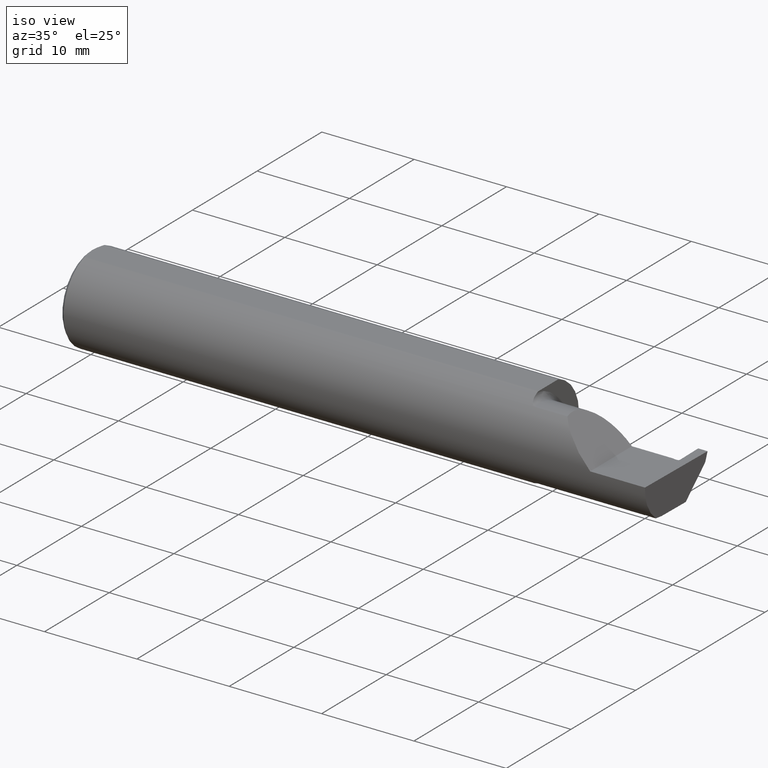
[diagram: clean part render]
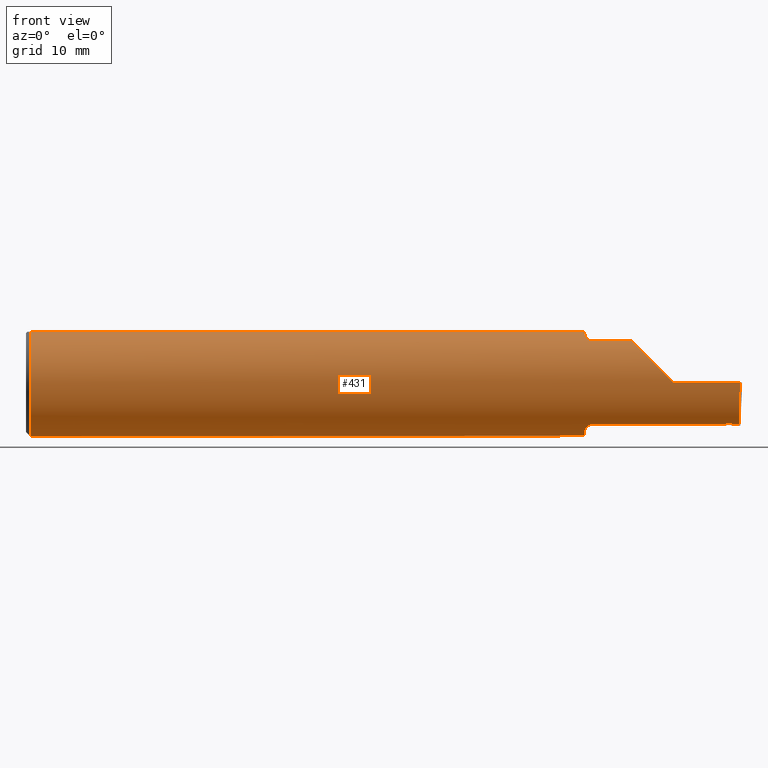
[diagram: tour spotlight — one face highlighted and labeled with its STEP entity id]
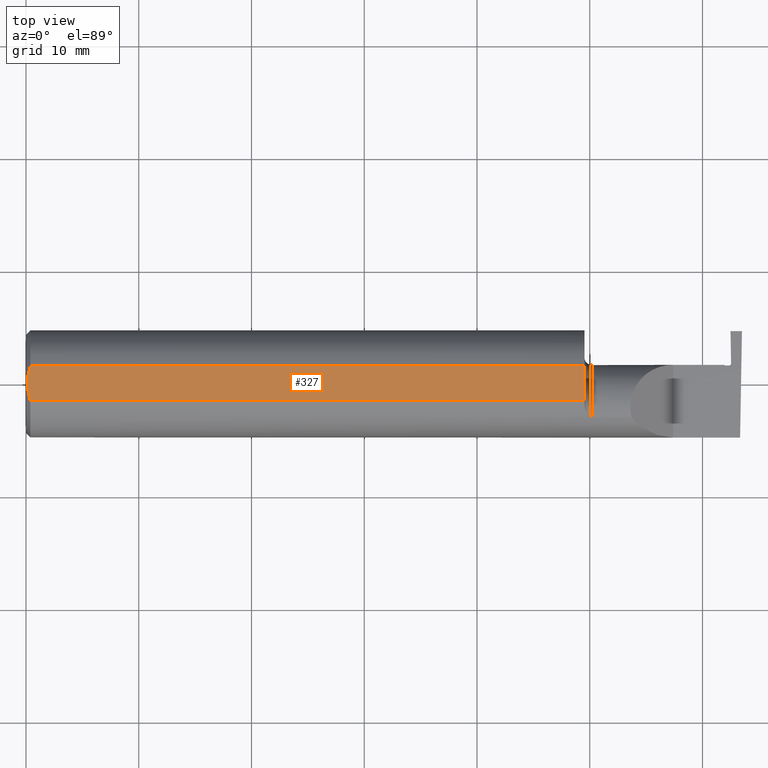
[diagram: tour spotlight — one face highlighted and labeled with its STEP entity id]
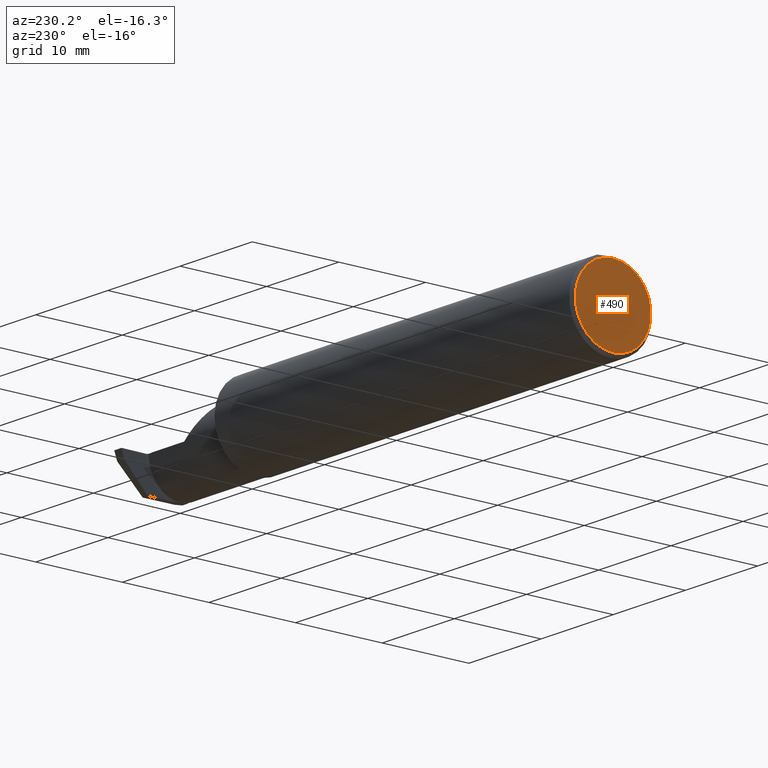
[diagram: tour spotlight — one face highlighted and labeled with its STEP entity id]
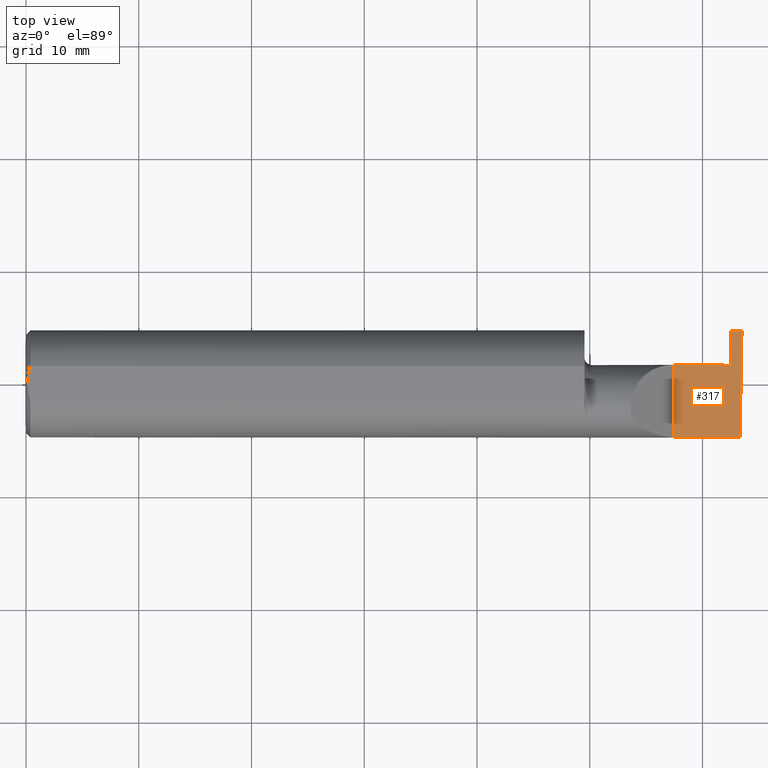
[diagram: tour spotlight — one face highlighted and labeled with its STEP entity id]
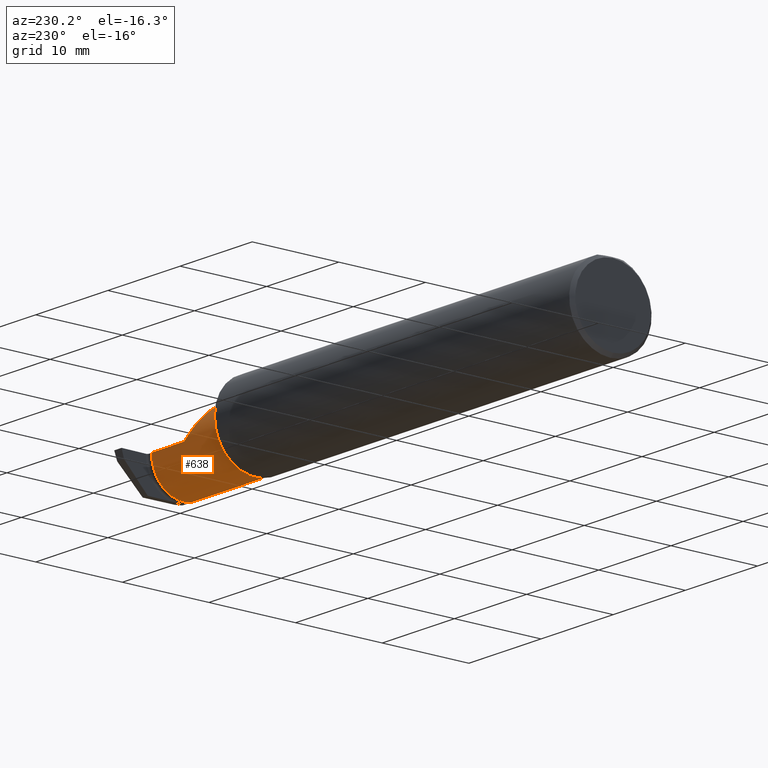
[diagram: tour spotlight — one face highlighted and labeled with its STEP entity id]
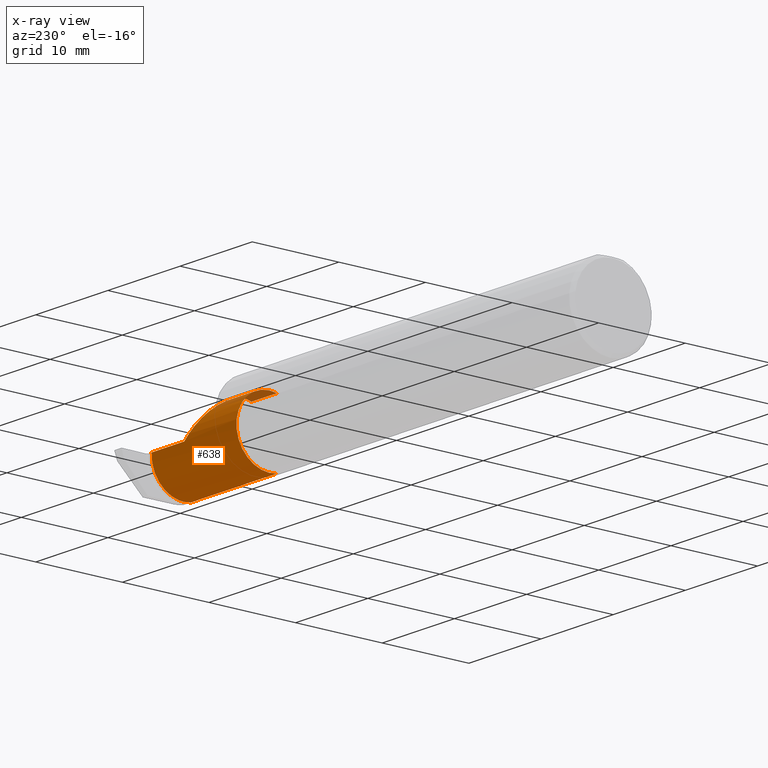
[diagram: x-ray of the same camera — body ghosted, this tour face saturated]
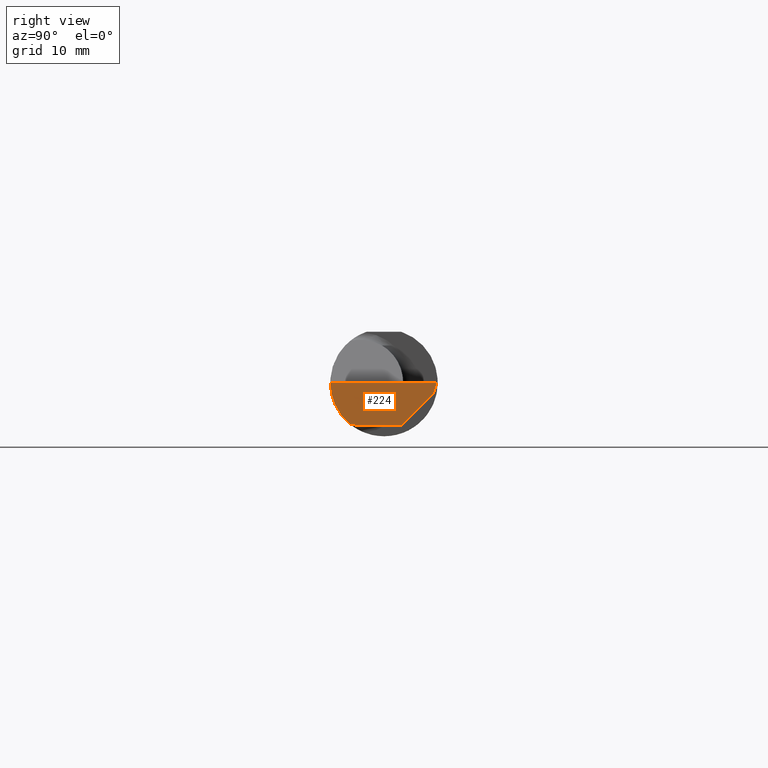
[diagram: tour spotlight — one face highlighted and labeled with its STEP entity id]
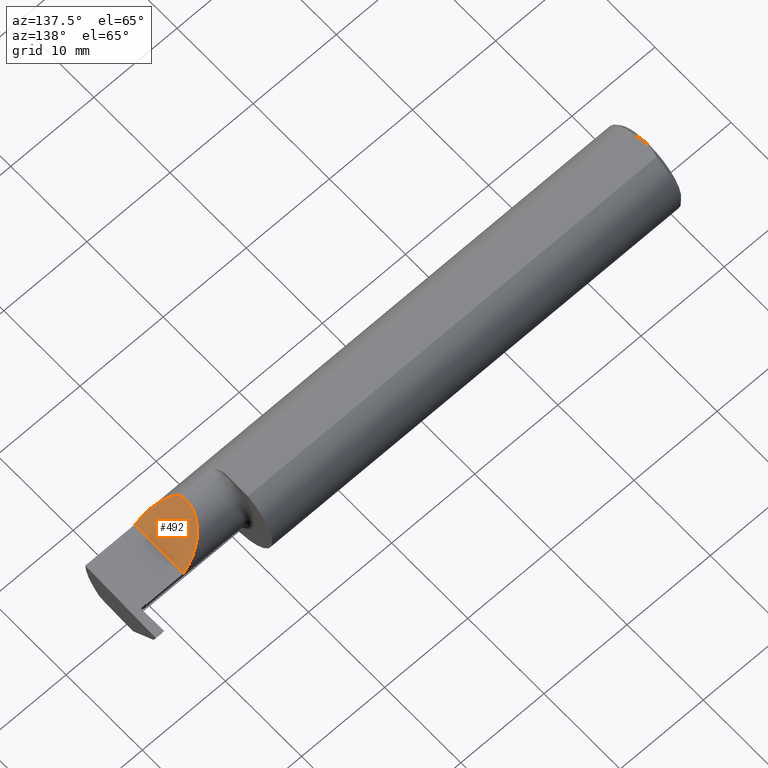
[diagram: tour spotlight — one face highlighted and labeled with its STEP entity id]
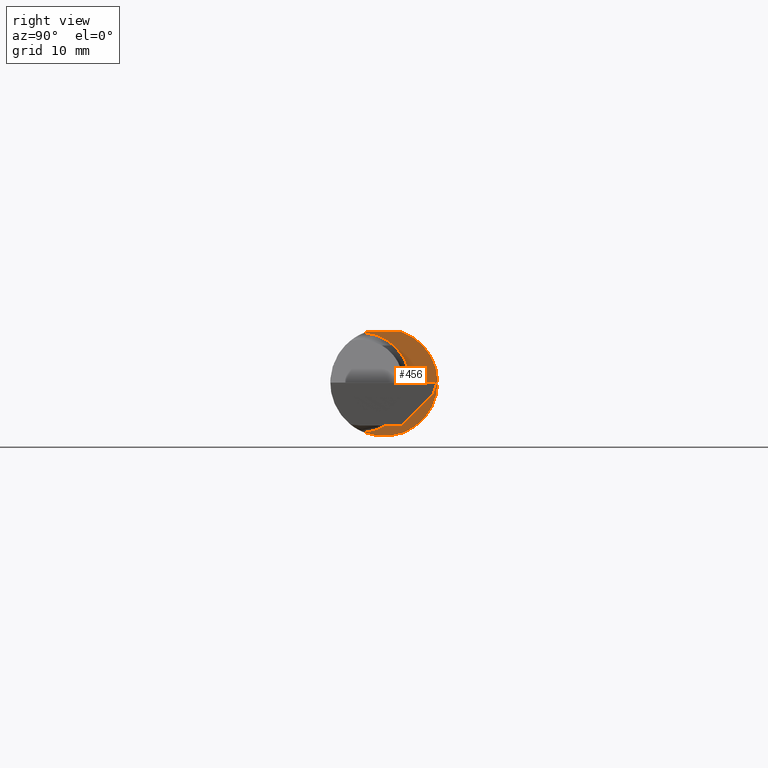
[diagram: tour spotlight — one face highlighted and labeled with its STEP entity id]
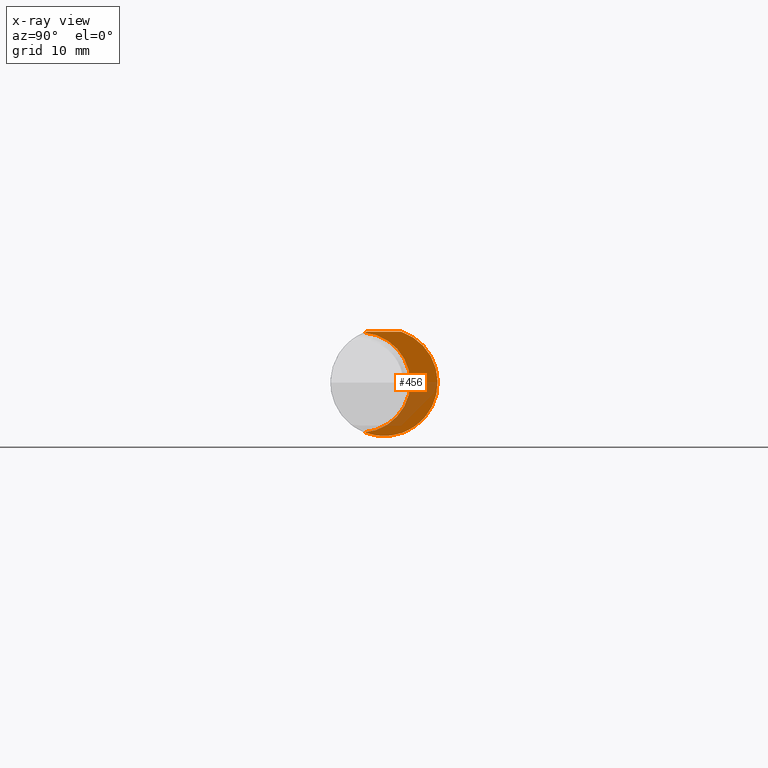
[diagram: x-ray of the same camera — body ghosted, this tour face saturated]
A machine part: a face-by-face anatomy tour. The part has 19 B-rep faces; the first image is the clean iso view, then the 8 largest visible faces are spotlighted one at a time (largest first), each with its STEP entity span.

Face 1 — front view, entity #431. In plain terms, the highlighted cylindrical surface (partial cylindrical patch) has radius 4.7587 mm, axis along (-1, -0, -0).
Definition (entity closure, byte-faithful):
#6 = CARTESIAN_POINT ( 'NONE',  ( 2.445025619349326718, -0.1199521637387227363, -0.1439149085897588609 ) ) ;
#7 = CARTESIAN_POINT ( 'NONE',  ( 1.949999999999999956, -0.06851976604679065053, 0.1743704796142198643 ) ) ;
#18 = ORIENTED_EDGE ( 'NONE', *, *, #558, .F. ) ;
#22 = CARTESIAN_POINT ( 'NONE',  ( 1.951843912362377642, -0.08846956905169088559, -0.1652353808078971809 ) ) ;
#23 = EDGE_CURVE ( 'NONE', #665, #352, #226, .T. ) ;
#31 = ORIENTED_EDGE ( 'NONE', *, *, #713, .F. ) ;
#39 = CARTESIAN_POINT ( 'NONE',  ( 1.974999999999999867, -0.1172600179964006784, -0.1461167706989303094 ) ) ;
#57 = VERTEX_POINT ( 'NONE', #539 ) ;
#62 = VERTEX_POINT ( 'NONE', #400 ) ;
#65 = VECTOR ( 'NONE', #911, 39.37007874015748143 ) ;
#70 = VERTEX_POINT ( 'NONE', #689 ) ;
#75 = ORIENTED_EDGE ( 'NONE', *, *, #252, .T. ) ;
#88 = VERTEX_POINT ( 'NONE', #311 ) ;
#93 = CARTESIAN_POINT ( 'NONE',  ( 2.456234333134005077, -0.1206275801653517166, -0.1433492567244478710 ) ) ;
#98 = CARTESIAN_POINT ( 'NONE',  ( 2.458725193120729458, -0.1207769875284124134, -0.1432234314053005275 ) ) ;
#100 = ORIENTED_EDGE ( 'NONE', *, *, #830, .F. ) ;
#110 = CARTESIAN_POINT ( 'NONE',  ( 2.452498061677696573, -0.1204031018440645667, -0.1435379292247977723 ) ) ;
#111 = VECTOR ( 'NONE', #791, 39.37007874015748143 ) ;
#113 = VERTEX_POINT ( 'NONE', #314 ) ;
#121 = CARTESIAN_POINT ( 'NONE',  ( 2.260000000000000231, -0.1873499999999999888, 2.939152317953647352E-17 ) ) ;
#122 = VERTEX_POINT ( 'NONE', #598 ) ;
#132 = CYLINDRICAL_SURFACE ( 'NONE', #602, 0.1873499999999999888 ) ;
#134 = VERTEX_POINT ( 'NONE', #121 ) ;
#140 = CARTESIAN_POINT ( 'NONE',  ( 2.443647039190231407, -0.1172600179964006506, -0.1461167706989302539 ) ) ;
#148 = CARTESIAN_POINT ( 'NONE',  ( 2.462366680899613414, -0.1203677650156389084, -0.1435703392140302570 ) ) ;
#156 = EDGE_CURVE ( 'NONE', #122, #62, #568, .T. ) ;
#160 = DIRECTION ( 'NONE',  ( 1.000000000000000000, 3.380999992158740588E-17, 0.000000000000000000 ) ) ;
#165 = CARTESIAN_POINT ( 'NONE',  ( 1.949999999999999956, -0.06851976604679065053, -0.1743704796142198643 ) ) ;
#175 = CARTESIAN_POINT ( 'NONE',  ( 1.974999999999999867, -0.1172600179964007477, 0.1461167706989303094 ) ) ;
#179 = CARTESIAN_POINT ( 'NONE',  ( 1.956287624083520083, -0.1021858045380144991, 0.1571187174372875306 ) ) ;
#184 = ORIENTED_EDGE ( 'NONE', *, *, #686, .F. ) ;
#187 = CARTESIAN_POINT ( 'NONE',  ( 2.491992669264299742, -0.1873499999999999888, -0.05781030015605114619 ) ) ;
#202 = CIRCLE ( 'NONE', #406, 0.1873499999999999888 ) ;
#206 = ORIENTED_EDGE ( 'NONE', *, *, #413, .F. ) ;
#226 = B_SPLINE_CURVE_WITH_KNOTS ( 'NONE', 3,
 ( #459, #454, #535, #674, #894, #179, #250, #245, #899, #753, #903, #175 ),
 .UNSPECIFIED., .F., .F.,
 ( 4, 2, 2, 2, 2, 4 ),
 ( 4.423516731080786679E-05, 0.0004615475116586700540, 0.0008788598560065322141, 0.001296172200354394266, 0.001504828372528325617, 0.001713484544702257185 ),
 .UNSPECIFIED. ) ;
#237 = ORIENTED_EDGE ( 'NONE', *, *, #23, .F. ) ;
#245 = CARTESIAN_POINT ( 'NONE',  ( 1.963163223656403389, -0.1119926267047277463, 0.1502091925606062472 ) ) ;
#246 = VECTOR ( 'NONE', #551, 39.37007874015748143 ) ;
#248 = CARTESIAN_POINT ( 'NONE',  ( 1.969511795768555062, -0.1163687266324235220, -0.1468371510166789073 ) ) ;
#250 = CARTESIAN_POINT ( 'NONE',  ( 1.958475602106621638, -0.1064978748893405658, 0.1542035505680383611 ) ) ;
#252 = EDGE_CURVE ( 'NONE', #134, #844, #643, .T. ) ;
#253 = DIRECTION ( 'NONE',  ( 1.000000000000000000, 0.000000000000000000, 0.000000000000000000 ) ) ;
#269 = LINE ( 'NONE', #915, #246 ) ;
#272 = DIRECTION ( 'NONE',  ( 1.000000000000000000, 3.380999992158740588E-17, 0.000000000000000000 ) ) ;
#277 = AXIS2_PLACEMENT_3D ( 'NONE', #614, #345, #630 ) ;
#288 = ORIENTED_EDGE ( 'NONE', *, *, #389, .F. ) ;
#289 = B_SPLINE_CURVE_WITH_KNOTS ( 'NONE', 3,
 ( #39, #755, #248, #523, #882, #375, #675, #824, #22, #520, #532, #165 ),
 .UNSPECIFIED., .F., .F.,
 ( 4, 2, 2, 2, 2, 4 ),
 ( 1.967976973658592312E-07, 0.0002120314145722180567, 0.0004238660314470702188, 0.0008475352651967873368, 0.001271204498946504292, 0.001694873732696221139 ),
 .UNSPECIFIED. ) ;
#291 = LINE ( 'NONE', #517, #111 ) ;
#292 = EDGE_CURVE ( 'NONE', #748, #929, #202, .T. ) ;
#304 = ORIENTED_EDGE ( 'NONE', *, *, #553, .F. ) ;
#311 = CARTESIAN_POINT ( 'NONE',  ( 2.445025619349326718, -0.1199521637387227363, -0.1439149085897588609 ) ) ;
#312 = CARTESIAN_POINT ( 'NONE',  ( 2.445025619349326718, -0.1199521637387227363, -0.1439149085897588609 ) ) ;
#314 = CARTESIAN_POINT ( 'NONE',  ( 0.01499999999999756042, 0.06039039658754215278, 0.1773499999999999799 ) ) ;
#315 = CARTESIAN_POINT ( 'NONE',  ( 2.459970630616780785, -0.1208515442419362679, -0.1431604929941892868 ) ) ;
#321 = CARTESIAN_POINT ( 'NONE',  ( 0.01499999999999999944, 0.000000000000000000, 0.000000000000000000 ) ) ;
#324 = CARTESIAN_POINT ( 'NONE',  ( 1.949999999999999956, 0.06039039658754216666, 0.1773499999999999799 ) ) ;
#340 = CARTESIAN_POINT ( 'NONE',  ( 2.113883229301070532, -0.1172600179964008726, 0.1461167706989301707 ) ) ;
#341 = CARTESIAN_POINT ( 'NONE',  ( 2.491063981715931686, -0.1623470442677541759, -0.1099340280425337851 ) ) ;
#345 = DIRECTION ( 'NONE',  ( -1.000000000000000000, -0.000000000000000000, -0.000000000000000000 ) ) ;
#352 = VERTEX_POINT ( 'NONE', #908 ) ;
#353 = EDGE_CURVE ( 'NONE', #122, #812, #904, .T. ) ;
#363 = CARTESIAN_POINT ( 'NONE',  ( 2.459970630616780785, -0.1208515442419362679, -0.1431604929941892868 ) ) ;
#366 = CIRCLE ( 'NONE', #408, 0.1873499999999999888 ) ;
#375 = CARTESIAN_POINT ( 'NONE',  ( 1.958439486659306450, -0.1064616213911158821, -0.1542305641651499359 ) ) ;
#377 = ORIENTED_EDGE ( 'NONE', *, *, #887, .F. ) ;
#379 = CARTESIAN_POINT ( 'NONE',  ( 2.450629942783411508, -0.1202905323672773669, -0.1436322050335404887 ) ) ;
#389 = EDGE_CURVE ( 'NONE', #352, #844, #688, .T. ) ;
#400 = CARTESIAN_POINT ( 'NONE',  ( 2.465157082535036182, -0.1172600179964006784, -0.1461167706989302539 ) ) ;
#402 = CARTESIAN_POINT ( 'NONE',  ( 1.949999999999999956, 0.000000000000000000, 0.000000000000000000 ) ) ;
#403 = CARTESIAN_POINT ( 'NONE',  ( 0.000000000000000000, 0.000000000000000000, 0.000000000000000000 ) ) ;
#404 = CARTESIAN_POINT ( 'NONE',  ( 2.214999999999999858, -0.1172600179964007477, -0.1461167706989302817 ) ) ;
#405 = ORIENTED_EDGE ( 'NONE', *, *, #353, .T. ) ;
#406 = AXIS2_PLACEMENT_3D ( 'NONE', #321, #607, #826 ) ;
#407 = DIRECTION ( 'NONE',  ( 0.000000000000000000, 1.000000000000000000, 0.000000000000000000 ) ) ;
#408 = AXIS2_PLACEMENT_3D ( 'NONE', #402, #272, #407 ) ;
#413 = EDGE_CURVE ( 'NONE', #775, #113, #269, .T. ) ;
#414 = DIRECTION ( 'NONE',  ( 0.000000000000000000, 0.000000000000000000, 1.000000000000000000 ) ) ;
#415 = DIRECTION ( 'NONE',  ( -1.000000000000000000, -3.380999992158740588E-17, -0.000000000000000000 ) ) ;
#431 = ADVANCED_FACE ( 'NONE', ( #777 ), #132, .T. ) ;
#439 = ORIENTED_EDGE ( 'NONE', *, *, #893, .F. ) ;
#440 = DIRECTION ( 'NONE',  ( 0.000000000000000000, 1.000000000000000000, 0.000000000000000000 ) ) ;
#441 = LINE ( 'NONE', #795, #743 ) ;
#445 = CARTESIAN_POINT ( 'NONE',  ( 2.457479760627249821, -0.1207023328152106445, -0.1432863527968693540 ) ) ;
#447 = VERTEX_POINT ( 'NONE', #468 ) ;
#454 = CARTESIAN_POINT ( 'NONE',  ( 1.949999999999999512, -0.07367581953296702124, 0.1723443821957854061 ) ) ;
#459 = CARTESIAN_POINT ( 'NONE',  ( 1.949999999999999956, -0.06851976604679065053, 0.1743704796142198643 ) ) ;
#468 = CARTESIAN_POINT ( 'NONE',  ( 1.949999999999999956, -0.06851976604679065053, -0.1743704796142198643 ) ) ;
#477 = EDGE_CURVE ( 'NONE', #113, #748, #831, .T. ) ;
#478 = VERTEX_POINT ( 'NONE', #546 ) ;
#479 = CARTESIAN_POINT ( 'NONE',  ( 0.01499999999999999944, 0.000000000000000000, -0.1873499999999999888 ) ) ;
#488 = CARTESIAN_POINT ( 'NONE',  ( 2.214999999999999858, -0.1172600179964007477, 0.1461167706989302817 ) ) ;
#507 = CARTESIAN_POINT ( 'NONE',  ( 0.01499999999999999944, -0.06039039658753697637, 0.1773499999999999799 ) ) ;
#517 = CARTESIAN_POINT ( 'NONE',  ( 2.214999999999999858, -0.1172600179964007477, -0.1461167706989302817 ) ) ;
#520 = CARTESIAN_POINT ( 'NONE',  ( 1.950358271039144276, -0.07873626113568087115, -0.1700887912276896896 ) ) ;
#523 = CARTESIAN_POINT ( 'NONE',  ( 1.965028532764138580, -0.1137241120808236416, -0.1488947809299403791 ) ) ;
#532 = CARTESIAN_POINT ( 'NONE',  ( 1.950000000000000178, -0.07368234487347195827, -0.1723418180300748392 ) ) ;
#533 = B_SPLINE_CURVE_WITH_KNOTS ( 'NONE', 3,
 ( #785, #715, #801, #148, #806, #363 ),
 .UNSPECIFIED., .F., .F.,
 ( 4, 2, 4 ),
 ( 0.0002880341540428491692, 0.0003798726319057547842, 0.0004717111097686603992 ),
 .UNSPECIFIED. ) ;
#535 = CARTESIAN_POINT ( 'NONE',  ( 1.950353553376444671, -0.07868116735658675642, 0.1701139256562800572 ) ) ;
#539 = CARTESIAN_POINT ( 'NONE',  ( 1.949999999999999956, -0.06039039658753699025, 0.1773499999999999799 ) ) ;
#546 = CARTESIAN_POINT ( 'NONE',  ( 1.974999999999999867, -0.1172600179964006784, -0.1461167706989303094 ) ) ;
#551 = DIRECTION ( 'NONE',  ( -1.000000000000000000, -0.000000000000000000, -0.000000000000000000 ) ) ;
#553 = EDGE_CURVE ( 'NONE', #70, #478, #291, .T. ) ;
#558 = EDGE_CURVE ( 'NONE', #62, #727, #533, .T. ) ;
#566 = EDGE_CURVE ( 'NONE', #812, #134, #441, .T. ) ;
#567 = DIRECTION ( 'NONE',  ( -1.000000000000000000, -0.000000000000000000, -0.000000000000000000 ) ) ;
#568 = LINE ( 'NONE', #404, #788 ) ;
#569 = ORIENTED_EDGE ( 'NONE', *, *, #156, .F. ) ;
#586 = CARTESIAN_POINT ( 'NONE',  ( 2.448761823782201308, -0.1201779628840470154, -0.1437264808476793054 ) ) ;
#591 = ORIENTED_EDGE ( 'NONE', *, *, #477, .F. ) ;
#598 = CARTESIAN_POINT ( 'NONE',  ( 2.490903355898018923, -0.1172600179964007477, -0.1461167706989302817 ) ) ;
#601 = CARTESIAN_POINT ( 'NONE',  ( 2.202189699843949189, -0.1873500000000000443, 0.05781030015605096578 ) ) ;
#602 = AXIS2_PLACEMENT_3D ( 'NONE', #403, #567, #414 ) ;
#607 = DIRECTION ( 'NONE',  ( -1.000000000000000000, -0.000000000000000000, -0.000000000000000000 ) ) ;
#614 = CARTESIAN_POINT ( 'NONE',  ( 0.01499999999999999944, 0.000000000000000000, 0.000000000000000000 ) ) ;
#628 = EDGE_LOOP ( 'NONE', ( #569, #405, #768, #75, #288, #237, #100, #31, #779, #591, #206, #439, #184, #304, #377, #798, #18 ) ) ;
#630 = DIRECTION ( 'NONE',  ( 0.000000000000000000, 0.000000000000000000, 1.000000000000000000 ) ) ;
#643 =( BOUNDED_CURVE ( )  B_SPLINE_CURVE ( 3, ( #821, #601, #886, #898 ),
 .UNSPECIFIED., .F., .T. ) 
 B_SPLINE_CURVE_WITH_KNOTS ( ( 4, 4 ),
 ( 4.712388980384688786, 5.606916381293135743 ),
 .UNSPECIFIED. ) 
 CURVE ( )  GEOMETRIC_REPRESENTATION_ITEM ( )  RATIONAL_B_SPLINE_CURVE ( ( 1.000000000000000000, 0.9344226172588803170, 0.9344226172588803170, 1.000000000000000000 ) ) 
 REPRESENTATION_ITEM ( '' )  );
#654 = CARTESIAN_POINT ( 'NONE',  ( 2.444107737563654847, -0.1181638109592731689, -0.1453914687463582767 ) ) ;
#662 = CARTESIAN_POINT ( 'NONE',  ( 2.454366191791701013, -0.1205154511844148957, -0.1434436126209895079 ) ) ;
#663 = CIRCLE ( 'NONE', #878, 0.1873499999999999888 ) ;
#665 = VERTEX_POINT ( 'NONE', #7 ) ;
#672 = CARTESIAN_POINT ( 'NONE',  ( 2.446893715973978090, -0.1200651732627397716, -0.1438207158680889775 ) ) ;
#674 = CARTESIAN_POINT ( 'NONE',  ( 1.951829077486399555, -0.08839624499054642148, 0.1652742498708037466 ) ) ;
#675 = CARTESIAN_POINT ( 'NONE',  ( 1.956304331342287428, -0.1022198306720691341, -0.1570962426853818039 ) ) ;
#686 = EDGE_CURVE ( 'NONE', #478, #447, #289, .T. ) ;
#688 = LINE ( 'NONE', #488, #65 ) ;
#689 = CARTESIAN_POINT ( 'NONE',  ( 2.443647039190231407, -0.1172600179964006506, -0.1461167706989302539 ) ) ;
#703 = B_SPLINE_CURVE_WITH_KNOTS ( 'NONE', 3,
 ( #6, #804, #654, #140 ),
 .UNSPECIFIED., .F., .F.,
 ( 4, 4 ),
 ( 0.000000000000000000, 9.502270576818755735E-05 ),
 .UNSPECIFIED. ) ;
#713 = EDGE_CURVE ( 'NONE', #929, #57, #742, .T. ) ;
#715 = CARTESIAN_POINT ( 'NONE',  ( 2.464654264849349463, -0.1181371930991237940, -0.1454128298176796952 ) ) ;
#724 = EDGE_CURVE ( 'NONE', #727, #88, #749, .T. ) ;
#727 = VERTEX_POINT ( 'NONE', #315 ) ;
#742 = LINE ( 'NONE', #746, #877 ) ;
#743 = VECTOR ( 'NONE', #927, 39.37007874015748143 ) ;
#746 = CARTESIAN_POINT ( 'NONE',  ( 0.000000000000000000, -0.06039039658753697637, 0.1773499999999999799 ) ) ;
#748 = VERTEX_POINT ( 'NONE', #479 ) ;
#749 = B_SPLINE_CURVE_WITH_KNOTS ( 'NONE', 3,
 ( #897, #98, #445, #93, #662, #110, #379, #586, #672, #312 ),
 .UNSPECIFIED., .F., .F.,
 ( 4, 3, 3, 4 ),
 ( 0.000000000000000000, 9.519312269085498826E-05, 0.0002379828151243721063, 0.0003807725157310080629 ),
 .UNSPECIFIED. ) ;
#753 = CARTESIAN_POINT ( 'NONE',  ( 1.969481469043492750, -0.1163560528186165927, 0.1468472430636323378 ) ) ;
#755 = CARTESIAN_POINT ( 'NONE',  ( 1.972174967710399240, -0.1172600179964006922, -0.1461167706989303650 ) ) ;
#768 = ORIENTED_EDGE ( 'NONE', *, *, #566, .T. ) ;
#770 = CARTESIAN_POINT ( 'NONE',  ( 2.493506715846705468, -0.1873499999999999888, 0.000000000000000000 ) ) ;
#775 = VERTEX_POINT ( 'NONE', #324 ) ;
#776 = CARTESIAN_POINT ( 'NONE',  ( 1.949999999999999956, 0.000000000000000000, 0.000000000000000000 ) ) ;
#777 = FACE_OUTER_BOUND ( 'NONE', #628, .T. ) ;
#779 = ORIENTED_EDGE ( 'NONE', *, *, #292, .F. ) ;
#785 = CARTESIAN_POINT ( 'NONE',  ( 2.465157082535036182, -0.1172600179964006784, -0.1461167706989302539 ) ) ;
#788 = VECTOR ( 'NONE', #415, 39.37007874015748143 ) ;
#791 = DIRECTION ( 'NONE',  ( -1.000000000000000000, -3.380999992158740588E-17, -0.000000000000000000 ) ) ;
#795 = CARTESIAN_POINT ( 'NONE',  ( 3.749399456654646757E-32, -0.1873499999999999888, 3.061616997868384127E-16 ) ) ;
#798 = ORIENTED_EDGE ( 'NONE', *, *, #724, .F. ) ;
#801 = CARTESIAN_POINT ( 'NONE',  ( 2.464039528730182838, -0.1189754524817046855, -0.1447262341929252127 ) ) ;
#804 = CARTESIAN_POINT ( 'NONE',  ( 2.444567321465593857, -0.1190612593471432612, -0.1446574717508759267 ) ) ;
#806 = CARTESIAN_POINT ( 'NONE',  ( 2.461215914213715994, -0.1209260915574468104, -0.1430975625165825382 ) ) ;
#812 = VERTEX_POINT ( 'NONE', #770 ) ;
#821 = CARTESIAN_POINT ( 'NONE',  ( 2.260000000000000231, -0.1873499999999999888, 2.939152317953647352E-17 ) ) ;
#824 = CARTESIAN_POINT ( 'NONE',  ( 1.952960551809340473, -0.09317341542745743999, -0.1626248379125196653 ) ) ;
#826 = DIRECTION ( 'NONE',  ( 0.000000000000000000, 0.000000000000000000, 1.000000000000000000 ) ) ;
#830 = EDGE_CURVE ( 'NONE', #57, #665, #366, .T. ) ;
#831 = CIRCLE ( 'NONE', #277, 0.1873499999999999888 ) ;
#844 = VERTEX_POINT ( 'NONE', #340 ) ;
#852 = CARTESIAN_POINT ( 'NONE',  ( 2.490903355898018923, -0.1172600179964007477, -0.1461167706989302817 ) ) ;
#877 = VECTOR ( 'NONE', #253, 39.37007874015748143 ) ;
#878 = AXIS2_PLACEMENT_3D ( 'NONE', #776, #160, #440 ) ;
#882 = CARTESIAN_POINT ( 'NONE',  ( 1.963203859946833996, -0.1120371980050639121, -0.1501764597936558754 ) ) ;
#886 = CARTESIAN_POINT ( 'NONE',  ( 2.150065971957467070, -0.1623470442677542591, 0.1099340280425335908 ) ) ;
#887 = EDGE_CURVE ( 'NONE', #88, #70, #703, .T. ) ;
#893 = EDGE_CURVE ( 'NONE', #447, #775, #663, .T. ) ;
#894 = CARTESIAN_POINT ( 'NONE',  ( 1.952945243422982369, -0.09312071749437422774, 0.1626553472577906556 ) ) ;
#897 = CARTESIAN_POINT ( 'NONE',  ( 2.459970630616780785, -0.1208515442419362679, -0.1431604929941892868 ) ) ;
#898 = CARTESIAN_POINT ( 'NONE',  ( 2.113883229301070532, -0.1172600179964008726, 0.1461167706989301707 ) ) ;
#899 = CARTESIAN_POINT ( 'NONE',  ( 1.965004157323697376, -0.1137044537483316020, 0.1489098419202428414 ) ) ;
#903 = CARTESIAN_POINT ( 'NONE',  ( 1.972161949849308593, -0.1172600179964061462, 0.1461167706989260351 ) ) ;
#904 =( BOUNDED_CURVE ( )  B_SPLINE_CURVE ( 3, ( #852, #341, #187, #924 ),
 .UNSPECIFIED., .F., .T. ) 
 B_SPLINE_CURVE_WITH_KNOTS ( ( 4, 4 ),
 ( 0.08839520912052888091, 0.9829226100289757406 ),
 .UNSPECIFIED. ) 
 CURVE ( )  GEOMETRIC_REPRESENTATION_ITEM ( )  RATIONAL_B_SPLINE_CURVE ( ( 1.000000000000000000, 0.9344226172588803170, 0.9344226172588803170, 1.000000000000000000 ) ) 
 REPRESENTATION_ITEM ( '' )  );
#908 = CARTESIAN_POINT ( 'NONE',  ( 1.974999999999999867, -0.1172600179964007477, 0.1461167706989303094 ) ) ;
#911 = DIRECTION ( 'NONE',  ( 1.000000000000000000, 3.380999992158740588E-17, 0.000000000000000000 ) ) ;
#915 = CARTESIAN_POINT ( 'NONE',  ( 0.000000000000000000, 0.06039039658753697637, 0.1773499999999999799 ) ) ;
#924 = CARTESIAN_POINT ( 'NONE',  ( 2.493506715846705468, -0.1873499999999999888, 0.000000000000000000 ) ) ;
#927 = DIRECTION ( 'NONE',  ( -1.000000000000000000, -0.000000000000000000, -0.000000000000000000 ) ) ;
#929 = VERTEX_POINT ( 'NONE', #507 ) ;

Face 2 — top view, entity #327. In plain terms, the highlighted planar face has unit normal (0, -0, 1).
Definition (entity closure, byte-faithful):
#8 = B_SPLINE_CURVE_WITH_KNOTS ( 'NONE', 3,
 ( #829, #115, #702, #687, #344, #328 ),
 .UNSPECIFIED., .F., .F.,
 ( 4, 2, 4 ),
 ( 0.004207325536406422359, 0.004979129323161655095, 0.005750933109916887831 ),
 .UNSPECIFIED. ) ;
#25 = DIRECTION ( 'NONE',  ( -3.380999992158740588E-17, 1.000000000000000000, 0.000000000000000000 ) ) ;
#52 = ORIENTED_EDGE ( 'NONE', *, *, #713, .T. ) ;
#57 = VERTEX_POINT ( 'NONE', #539 ) ;
#99 = FACE_OUTER_BOUND ( 'NONE', #554, .T. ) ;
#101 = EDGE_CURVE ( 'NONE', #57, #775, #594, .T. ) ;
#113 = VERTEX_POINT ( 'NONE', #314 ) ;
#115 = CARTESIAN_POINT ( 'NONE',  ( 0.01185291896084217714, 0.05062716160312498437, 0.1773499999999999521 ) ) ;
#124 = AXIS2_PLACEMENT_3D ( 'NONE', #350, #781, #125 ) ;
#125 = DIRECTION ( 'NONE',  ( 1.000000000000000000, 0.000000000000000000, -0.000000000000000000 ) ) ;
#145 = ORIENTED_EDGE ( 'NONE', *, *, #413, .T. ) ;
#154 = VERTEX_POINT ( 'NONE', #912 ) ;
#177 = CARTESIAN_POINT ( 'NONE',  ( 0.004999999999999835305, 2.941982542510190671E-17, 0.1773499999999999799 ) ) ;
#235 = CARTESIAN_POINT ( 'NONE',  ( 0.009318557230853204490, -0.04061090184993776386, 0.1773499999999999799 ) ) ;
#238 = CARTESIAN_POINT ( 'NONE',  ( 0.005896899252109314912, -0.02043863390046160924, 0.1773500000000000354 ) ) ;
#246 = VECTOR ( 'NONE', #551, 39.37007874015748143 ) ;
#253 = DIRECTION ( 'NONE',  ( 1.000000000000000000, 0.000000000000000000, 0.000000000000000000 ) ) ;
#255 = ORIENTED_EDGE ( 'NONE', *, *, #683, .T. ) ;
#269 = LINE ( 'NONE', #915, #246 ) ;
#314 = CARTESIAN_POINT ( 'NONE',  ( 0.01499999999999756042, 0.06039039658754215278, 0.1773499999999999799 ) ) ;
#320 = CARTESIAN_POINT ( 'NONE',  ( 0.004999999999999833571, -0.01026662907944655458, 0.1773499999999999521 ) ) ;
#324 = CARTESIAN_POINT ( 'NONE',  ( 1.949999999999999956, 0.06039039658754216666, 0.1773499999999999799 ) ) ;
#327 = ADVANCED_FACE ( 'NONE', ( #99 ), #417, .T. ) ;
#328 = CARTESIAN_POINT ( 'NONE',  ( 0.004999999999999835305, 2.941982542510190671E-17, 0.1773499999999999799 ) ) ;
#344 = CARTESIAN_POINT ( 'NONE',  ( 0.004999999999999839642, 0.01027925662263861305, 0.1773499999999999799 ) ) ;
#350 = CARTESIAN_POINT ( 'NONE',  ( 2.500000000000000000, -0.1873500000000000165, 0.1773499999999999799 ) ) ;
#392 = VECTOR ( 'NONE', #25, 39.37007874015748143 ) ;
#413 = EDGE_CURVE ( 'NONE', #775, #113, #269, .T. ) ;
#417 = PLANE ( 'NONE',  #124 ) ;
#429 = ORIENTED_EDGE ( 'NONE', *, *, #101, .T. ) ;
#507 = CARTESIAN_POINT ( 'NONE',  ( 0.01499999999999999944, -0.06039039658753697637, 0.1773499999999999799 ) ) ;
#515 = B_SPLINE_CURVE_WITH_KNOTS ( 'NONE', 3,
 ( #177, #320, #238, #235, #809, #879 ),
 .UNSPECIFIED., .F., .F.,
 ( 4, 2, 4 ),
 ( 0.005750933109916887831, 0.006521788775031543001, 0.007292644440146199038 ),
 .UNSPECIFIED. ) ;
#539 = CARTESIAN_POINT ( 'NONE',  ( 1.949999999999999956, -0.06039039658753699025, 0.1773499999999999799 ) ) ;
#551 = DIRECTION ( 'NONE',  ( -1.000000000000000000, -0.000000000000000000, -0.000000000000000000 ) ) ;
#554 = EDGE_LOOP ( 'NONE', ( #52, #429, #145, #913, #255 ) ) ;
#594 = LINE ( 'NONE', #814, #392 ) ;
#683 = EDGE_CURVE ( 'NONE', #154, #929, #515, .T. ) ;
#687 = CARTESIAN_POINT ( 'NONE',  ( 0.005916828623699125177, 0.02060071390057613763, 0.1773499999999999799 ) ) ;
#702 = CARTESIAN_POINT ( 'NONE',  ( 0.009346310357820472939, 0.04072930668827419443, 0.1773500000000000354 ) ) ;
#713 = EDGE_CURVE ( 'NONE', #929, #57, #742, .T. ) ;
#742 = LINE ( 'NONE', #746, #877 ) ;
#746 = CARTESIAN_POINT ( 'NONE',  ( 0.000000000000000000, -0.06039039658753697637, 0.1773499999999999799 ) ) ;
#775 = VERTEX_POINT ( 'NONE', #324 ) ;
#781 = DIRECTION ( 'NONE',  ( 0.000000000000000000, -0.000000000000000000, 1.000000000000000000 ) ) ;
#809 = CARTESIAN_POINT ( 'NONE',  ( 0.01186375298701897348, -0.05066077215909271098, 0.1773499999999999799 ) ) ;
#814 = CARTESIAN_POINT ( 'NONE',  ( 1.949999999999999956, -0.1873500000000000443, 0.1773499999999999799 ) ) ;
#825 = EDGE_CURVE ( 'NONE', #113, #154, #8, .T. ) ;
#829 = CARTESIAN_POINT ( 'NONE',  ( 0.01499999999999756042, 0.06039039658754215278, 0.1773499999999999799 ) ) ;
#877 = VECTOR ( 'NONE', #253, 39.37007874015748143 ) ;
#879 = CARTESIAN_POINT ( 'NONE',  ( 0.01499999999999999944, -0.06039039658753697637, 0.1773499999999999799 ) ) ;
#912 = CARTESIAN_POINT ( 'NONE',  ( 0.004999999999999835305, 2.941982542510190671E-17, 0.1773499999999999799 ) ) ;
#913 = ORIENTED_EDGE ( 'NONE', *, *, #825, .T. ) ;
#915 = CARTESIAN_POINT ( 'NONE',  ( 0.000000000000000000, 0.06039039658753697637, 0.1773499999999999799 ) ) ;
#929 = VERTEX_POINT ( 'NONE', #507 ) ;

Face 3 — auxiliary view, entity #490. In plain terms, the highlighted planar face has unit normal (1, 0, 0).
Definition (entity closure, byte-faithful):
#48 = CARTESIAN_POINT ( 'NONE',  ( 0.000000000000000000, 0.000000000000000000, 0.000000000000000000 ) ) ;
#84 = CIRCLE ( 'NONE', #294, 0.1723499999999999754 ) ;
#90 = DIRECTION ( 'NONE',  ( 0.000000000000000000, 0.000000000000000000, -1.000000000000000000 ) ) ;
#97 = CIRCLE ( 'NONE', #466, 0.1723499999999999754 ) ;
#106 = CARTESIAN_POINT ( 'NONE',  ( 0.000000000000000000, 0.000000000000000000, 0.000000000000000000 ) ) ;
#168 = DIRECTION ( 'NONE',  ( -1.000000000000000000, -0.000000000000000000, -0.000000000000000000 ) ) ;
#191 = FACE_OUTER_BOUND ( 'NONE', #679, .T. ) ;
#232 = CARTESIAN_POINT ( 'NONE',  ( 0.000000000000000000, 0.000000000000000000, -0.1723499999999999754 ) ) ;
#234 = VERTEX_POINT ( 'NONE', #669 ) ;
#280 = ORIENTED_EDGE ( 'NONE', *, *, #769, .T. ) ;
#294 = AXIS2_PLACEMENT_3D ( 'NONE', #48, #780, #764 ) ;
#466 = AXIS2_PLACEMENT_3D ( 'NONE', #106, #168, #751 ) ;
#474 = PLANE ( 'NONE',  #587 ) ;
#480 = DIRECTION ( 'NONE',  ( 1.000000000000000000, 0.000000000000000000, 0.000000000000000000 ) ) ;
#490 = ADVANCED_FACE ( 'NONE', ( #191 ), #474, .F. ) ;
#522 = VERTEX_POINT ( 'NONE', #232 ) ;
#587 = AXIS2_PLACEMENT_3D ( 'NONE', #693, #480, #90 ) ;
#669 = CARTESIAN_POINT ( 'NONE',  ( 0.000000000000000000, 2.202527268266524596E-17, 0.1723499999999999754 ) ) ;
#677 = EDGE_CURVE ( 'NONE', #234, #522, #97, .T. ) ;
#679 = EDGE_LOOP ( 'NONE', ( #280, #818 ) ) ;
#693 = CARTESIAN_POINT ( 'NONE',  ( 0.000000000000000000, 0.000000000000000000, 0.000000000000000000 ) ) ;
#751 = DIRECTION ( 'NONE',  ( 0.000000000000000000, 0.000000000000000000, 1.000000000000000000 ) ) ;
#764 = DIRECTION ( 'NONE',  ( 0.000000000000000000, 0.000000000000000000, 1.000000000000000000 ) ) ;
#769 = EDGE_CURVE ( 'NONE', #522, #234, #84, .T. ) ;
#780 = DIRECTION ( 'NONE',  ( -1.000000000000000000, -0.000000000000000000, -0.000000000000000000 ) ) ;
#818 = ORIENTED_EDGE ( 'NONE', *, *, #677, .T. ) ;

Face 4 — top view, entity #317. In plain terms, the highlighted planar face has unit normal (-0, 0, -1).
Definition (entity closure, byte-faithful):
#12 = CARTESIAN_POINT ( 'NONE',  ( 1.949999999999999956, 0.06665000000000001479, 6.735557395310447447E-17 ) ) ;
#20 = DIRECTION ( 'NONE',  ( -1.224646799147353700E-16, 0.000000000000000000, -1.000000000000000000 ) ) ;
#29 = EDGE_CURVE ( 'NONE', #859, #812, #470, .T. ) ;
#33 = CARTESIAN_POINT ( 'NONE',  ( 2.260000000000000231, 0.06665000000000002867, 2.939152317953647352E-17 ) ) ;
#37 = CARTESIAN_POINT ( 'NONE',  ( 2.439999999988526902, 0.06464999999898692062, 1.642770404226131643E-10 ) ) ;
#55 = EDGE_CURVE ( 'NONE', #381, #500, #71, .T. ) ;
#64 = CARTESIAN_POINT ( 'NONE',  ( 2.454971356043562647, 0.06464999999999883340, -4.269731783416561075E-11 ) ) ;
#71 = B_SPLINE_CURVE_WITH_KNOTS ( 'NONE', 1,
 ( #37, #260 ),
 .UNSPECIFIED., .F., .F.,
 ( 2, 2 ),
 ( 0.000000000000000000, 7.184204878070084060E-05 ),
 .UNSPECIFIED. ) ;
#77 = LINE ( 'NONE', #162, #451 ) ;
#94 = FACE_OUTER_BOUND ( 'NONE', #300, .T. ) ;
#108 = ORIENTED_EDGE ( 'NONE', *, *, #516, .F. ) ;
#121 = CARTESIAN_POINT ( 'NONE',  ( 2.260000000000000231, -0.1873499999999999888, 2.939152317953647352E-17 ) ) ;
#130 = EDGE_CURVE ( 'NONE', #416, #381, #718, .T. ) ;
#131 = CARTESIAN_POINT ( 'NONE',  ( 2.459999999986550279, 0.1846500000000000363, -3.367778697655196529E-19 ) ) ;
#134 = VERTEX_POINT ( 'NONE', #121 ) ;
#162 = CARTESIAN_POINT ( 'NONE',  ( 2.260000000000000231, -0.2000000000000000111, 2.939152317953647352E-17 ) ) ;
#171 = ORIENTED_EDGE ( 'NONE', *, *, #750, .T. ) ;
#190 = CARTESIAN_POINT ( 'NONE',  ( 2.454971356043562647, 0.06464999999999883340, -4.269731783416561075E-11 ) ) ;
#207 = CARTESIAN_POINT ( 'NONE',  ( 2.461970289910105691, 0.07177216684492272736, -4.912318045390618572E-11 ) ) ;
#214 = ORIENTED_EDGE ( 'NONE', *, *, #540, .F. ) ;
#221 = CARTESIAN_POINT ( 'NONE',  ( 2.459999999986550279, 0.1846500000000000363, -3.367778697655196529E-19 ) ) ;
#230 = EDGE_CURVE ( 'NONE', #577, #859, #313, .T. ) ;
#260 = CARTESIAN_POINT ( 'NONE',  ( 2.437999999999999279, 0.06665000000000002867, 9.565530962379248802E-18 ) ) ;
#262 = VECTOR ( 'NONE', #391, 39.37007874015748143 ) ;
#300 = EDGE_LOOP ( 'NONE', ( #717, #642, #435, #171, #519, #608, #647, #108, #214 ) ) ;
#310 = DIRECTION ( 'NONE',  ( -1.000000000000000000, 0.000000000000000000, 1.224646799147353700E-16 ) ) ;
#313 = LINE ( 'NONE', #817, #695 ) ;
#317 = ADVANCED_FACE ( 'NONE', ( #94 ), #376, .F. ) ;
#325 = DIRECTION ( 'NONE',  ( 1.000000000000000000, -0.000000000000000000, -0.000000000000000000 ) ) ;
#376 = PLANE ( 'NONE',  #921 ) ;
#381 = VERTEX_POINT ( 'NONE', #765 ) ;
#386 = VERTEX_POINT ( 'NONE', #771 ) ;
#391 = DIRECTION ( 'NONE',  ( -0.01745240643727703073, -0.9998476951563912696, 0.000000000000000000 ) ) ;
#412 = CARTESIAN_POINT ( 'NONE',  ( 2.462042847893961550, 0.06761532263369839091, -4.817539354855489002E-11 ) ) ;
#416 = VERTEX_POINT ( 'NONE', #64 ) ;
#435 = ORIENTED_EDGE ( 'NONE', *, *, #230, .F. ) ;
#441 = LINE ( 'NONE', #795, #743 ) ;
#451 = VECTOR ( 'NONE', #512, 39.37007874015748143 ) ;
#470 = LINE ( 'NONE', #888, #262 ) ;
#472 = CARTESIAN_POINT ( 'NONE',  ( 2.459128833457473018, 0.06464999999995868496, -4.734314342618360752E-11 ) ) ;
#494 = CARTESIAN_POINT ( 'NONE',  ( 2.454971356043562647, 0.06464999999999883340, -4.269731783416561075E-11 ) ) ;
#500 = VERTEX_POINT ( 'NONE', #645 ) ;
#512 = DIRECTION ( 'NONE',  ( -0.000000000000000000, 1.000000000000000000, -0.000000000000000000 ) ) ;
#516 = EDGE_CURVE ( 'NONE', #697, #500, #865, .T. ) ;
#519 = ORIENTED_EDGE ( 'NONE', *, *, #767, .T. ) ;
#524 = CARTESIAN_POINT ( 'NONE',  ( 2.500000000000000000, -0.2000000000000000111, 0.000000000000000000 ) ) ;
#540 = EDGE_CURVE ( 'NONE', #134, #697, #77, .T. ) ;
#545 = CARTESIAN_POINT ( 'NONE',  ( 2.461970289910105691, 0.07177216684492272736, -4.912318045390618572E-11 ) ) ;
#552 = CARTESIAN_POINT ( 'NONE',  ( 2.439999999988526902, 0.06464999999898692062, 1.642770404226131643E-10 ) ) ;
#566 = EDGE_CURVE ( 'NONE', #812, #134, #441, .T. ) ;
#574 = VECTOR ( 'NONE', #873, 39.37007874015748143 ) ;
#577 = VERTEX_POINT ( 'NONE', #221 ) ;
#589 = B_SPLINE_CURVE_WITH_KNOTS ( 'NONE', 1,
 ( #131, #207 ),
 .UNSPECIFIED., .F., .F.,
 ( 2, 2 ),
 ( 6.218240129447691483E-15, 0.002867533701424599193 ),
 .UNSPECIFIED. ) ;
#608 = ORIENTED_EDGE ( 'NONE', *, *, #130, .T. ) ;
#624 = CARTESIAN_POINT ( 'NONE',  ( 2.500000000000000000, 0.1846500000000000363, 0.000000000000000000 ) ) ;
#642 = ORIENTED_EDGE ( 'NONE', *, *, #29, .F. ) ;
#645 = CARTESIAN_POINT ( 'NONE',  ( 2.437999999999999279, 0.06665000000000002867, 9.565530962379248802E-18 ) ) ;
#647 = ORIENTED_EDGE ( 'NONE', *, *, #55, .T. ) ;
#695 = VECTOR ( 'NONE', #325, 39.37007874015748143 ) ;
#697 = VERTEX_POINT ( 'NONE', #33 ) ;
#717 = ORIENTED_EDGE ( 'NONE', *, *, #566, .F. ) ;
#718 = B_SPLINE_CURVE_WITH_KNOTS ( 'NONE', 1,
 ( #494, #552 ),
 .UNSPECIFIED., .F., .F.,
 ( 2, 2 ),
 ( 0.000000000000000000, 0.0003802724437979021488 ),
 .UNSPECIFIED. ) ;
#743 = VECTOR ( 'NONE', #927, 39.37007874015748143 ) ;
#750 = EDGE_CURVE ( 'NONE', #577, #386, #589, .T. ) ;
#765 = CARTESIAN_POINT ( 'NONE',  ( 2.439999999988526902, 0.06464999999898692062, 1.642770404226131643E-10 ) ) ;
#767 = EDGE_CURVE ( 'NONE', #386, #416, #874, .T. ) ;
#770 = CARTESIAN_POINT ( 'NONE',  ( 2.493506715846705468, -0.1873499999999999888, 0.000000000000000000 ) ) ;
#771 = CARTESIAN_POINT ( 'NONE',  ( 2.461970289910105691, 0.07177216684492272736, -4.912318045390618572E-11 ) ) ;
#795 = CARTESIAN_POINT ( 'NONE',  ( 3.749399456654646757E-32, -0.1873499999999999888, 3.061616997868384127E-16 ) ) ;
#812 = VERTEX_POINT ( 'NONE', #770 ) ;
#817 = CARTESIAN_POINT ( 'NONE',  ( 2.399999999999999911, 0.1846500000000000363, -3.367778697655196529E-19 ) ) ;
#859 = VERTEX_POINT ( 'NONE', #624 ) ;
#865 = LINE ( 'NONE', #12, #574 ) ;
#873 = DIRECTION ( 'NONE',  ( 1.000000000000000000, 3.380999992158740588E-17, 0.000000000000000000 ) ) ;
#874 =( BOUNDED_CURVE ( )  B_SPLINE_CURVE ( 3, ( #545, #412, #472, #190 ),
 .UNSPECIFIED., .F., .T. ) 
 B_SPLINE_CURVE_WITH_KNOTS ( ( 4, 4 ),
 ( 4.336808689942018699E-19, 0.0002808519284762496450 ),
 .UNSPECIFIED. ) 
 CURVE ( )  GEOMETRIC_REPRESENTATION_ITEM ( )  RATIONAL_B_SPLINE_CURVE ( ( 1.000000000000000000, 0.8006061761999015980, 0.8006061761999015980, 1.000000000000000000 ) ) 
 REPRESENTATION_ITEM ( '' )  );
#888 = CARTESIAN_POINT ( 'NONE',  ( 2.500000000000000000, 0.1846500000000000363, 0.000000000000000000 ) ) ;
#921 = AXIS2_PLACEMENT_3D ( 'NONE', #524, #20, #310 ) ;
#927 = DIRECTION ( 'NONE',  ( -1.000000000000000000, -0.000000000000000000, -0.000000000000000000 ) ) ;

Face 5 — auxiliary view, entity #638. An x-ray twin of the same camera follows (body ghosted, this face saturated) — the face is partly hidden behind the body. In plain terms, the highlighted cylindrical surface (partial cylindrical patch) has radius 3.81 mm, axis along (-1, -0, -0).
Definition (entity closure, byte-faithful):
#10 = ORIENTED_EDGE ( 'NONE', *, *, #516, .T. ) ;
#12 = CARTESIAN_POINT ( 'NONE',  ( 1.949999999999999956, 0.06665000000000001479, 6.735557395310447447E-17 ) ) ;
#15 = CARTESIAN_POINT ( 'NONE',  ( 2.113883229301070532, -0.1172600179964008726, 0.1461167706989301707 ) ) ;
#33 = CARTESIAN_POINT ( 'NONE',  ( 2.260000000000000231, 0.06665000000000002867, 2.939152317953647352E-17 ) ) ;
#51 = CARTESIAN_POINT ( 'NONE',  ( 2.443815344807839463, -0.07244319703336485339, -0.1500290047513199443 ) ) ;
#65 = VECTOR ( 'NONE', #911, 39.37007874015748143 ) ;
#70 = VERTEX_POINT ( 'NONE', #689 ) ;
#72 =( BOUNDED_CURVE ( )  B_SPLINE_CURVE ( 3, ( #15, #305, #730, #861 ),
 .UNSPECIFIED., .F., .T. ) 
 B_SPLINE_CURVE_WITH_KNOTS ( ( 4, 4 ),
 ( 6.055147272130140479, 7.853981633974482790 ),
 .UNSPECIFIED. ) 
 CURVE ( )  GEOMETRIC_REPRESENTATION_ITEM ( )  RATIONAL_B_SPLINE_CURVE ( ( 1.000000000000000000, 0.7480442670255262883, 0.7480442670255262883, 1.000000000000000000 ) ) 
 REPRESENTATION_ITEM ( '' )  );
#111 = VECTOR ( 'NONE', #791, 39.37007874015748143 ) ;
#123 = CARTESIAN_POINT ( 'NONE',  ( 1.974999999999999867, -0.08334999999999996578, 0.000000000000000000 ) ) ;
#128 = ORIENTED_EDGE ( 'NONE', *, *, #626, .T. ) ;
#133 = CARTESIAN_POINT ( 'NONE',  ( 2.442833554690729159, 0.001115449006604886904, -0.1244700368982952776 ) ) ;
#172 = AXIS2_PLACEMENT_3D ( 'NONE', #371, #725, #651 ) ;
#181 = EDGE_CURVE ( 'NONE', #500, #70, #884, .T. ) ;
#192 = CARTESIAN_POINT ( 'NONE',  ( 2.439687465777492292, 0.06031148358191460584, -0.04459181647100689261 ) ) ;
#205 = CARTESIAN_POINT ( 'NONE',  ( 2.440931591934122125, 0.04684530795329978209, -0.07533264334203899903 ) ) ;
#216 = FACE_OUTER_BOUND ( 'NONE', #339, .T. ) ;
#258 = DIRECTION ( 'NONE',  ( 0.000000000000000000, -1.000000000000000000, 0.000000000000000000 ) ) ;
#291 = LINE ( 'NONE', #517, #111 ) ;
#305 = CARTESIAN_POINT ( 'NONE',  ( 2.090221225029928576, -0.01530148607434178402, 0.1697787749700727655 ) ) ;
#339 = EDGE_LOOP ( 'NONE', ( #10, #808, #881, #356, #549, #128 ) ) ;
#340 = CARTESIAN_POINT ( 'NONE',  ( 2.113883229301070532, -0.1172600179964008726, 0.1461167706989301707 ) ) ;
#346 = CARTESIAN_POINT ( 'NONE',  ( 2.441258951838737090, 0.04075339827323650604, -0.08498986596952529116 ) ) ;
#352 = VERTEX_POINT ( 'NONE', #908 ) ;
#356 = ORIENTED_EDGE ( 'NONE', *, *, #736, .F. ) ;
#371 = CARTESIAN_POINT ( 'NONE',  ( 1.949999999999999956, -0.08334999999999996578, 0.000000000000000000 ) ) ;
#389 = EDGE_CURVE ( 'NONE', #352, #844, #688, .T. ) ;
#418 = CARTESIAN_POINT ( 'NONE',  ( 2.442238177621297357, 0.01877818259014031599, -0.1104401941422837180 ) ) ;
#433 = CYLINDRICAL_SURFACE ( 'NONE', #172, 0.1499999999999999667 ) ;
#467 = DIRECTION ( 'NONE',  ( -1.000000000000000000, -3.380999992158740588E-17, -0.000000000000000000 ) ) ;
#475 = CARTESIAN_POINT ( 'NONE',  ( 2.438434870138814325, 0.06665000001257270767, -0.01133157783874306351 ) ) ;
#478 = VERTEX_POINT ( 'NONE', #546 ) ;
#488 = CARTESIAN_POINT ( 'NONE',  ( 2.214999999999999858, -0.1172600179964007477, 0.1461167706989302817 ) ) ;
#499 = CARTESIAN_POINT ( 'NONE',  ( 2.443789578363383619, -0.09504051956460139727, -0.1499699715607569483 ) ) ;
#500 = VERTEX_POINT ( 'NONE', #645 ) ;
#516 = EDGE_CURVE ( 'NONE', #697, #500, #865, .T. ) ;
#517 = CARTESIAN_POINT ( 'NONE',  ( 2.214999999999999858, -0.1172600179964007477, -0.1461167706989302817 ) ) ;
#546 = CARTESIAN_POINT ( 'NONE',  ( 1.974999999999999867, -0.1172600179964006784, -0.1461167706989303094 ) ) ;
#549 = ORIENTED_EDGE ( 'NONE', *, *, #389, .T. ) ;
#553 = EDGE_CURVE ( 'NONE', #70, #478, #291, .T. ) ;
#574 = VECTOR ( 'NONE', #873, 39.37007874015748143 ) ;
#615 = CARTESIAN_POINT ( 'NONE',  ( 2.443382066057236734, -0.02860029826593393082, -0.1401013635948225866 ) ) ;
#622 = CARTESIAN_POINT ( 'NONE',  ( 2.443046201255594241, -0.008364411415347749665, -0.1303958719657611065 ) ) ;
#626 = EDGE_CURVE ( 'NONE', #844, #697, #72, .T. ) ;
#631 = CARTESIAN_POINT ( 'NONE',  ( 2.443647039190231407, -0.1172600179964006506, -0.1461167706989302539 ) ) ;
#638 = ADVANCED_FACE ( 'NONE', ( #216 ), #433, .T. ) ;
#645 = CARTESIAN_POINT ( 'NONE',  ( 2.437999999999999279, 0.06665000000000002867, 9.565530962379248802E-18 ) ) ;
#651 = DIRECTION ( 'NONE',  ( 0.000000000000000000, -1.000000000000000000, 0.000000000000000000 ) ) ;
#688 = LINE ( 'NONE', #488, #65 ) ;
#689 = CARTESIAN_POINT ( 'NONE',  ( 2.443647039190231407, -0.1172600179964006506, -0.1461167706989302539 ) ) ;
#694 = CARTESIAN_POINT ( 'NONE',  ( 2.443759016412424323, -0.06120540515718057156, -0.1487771738941283117 ) ) ;
#697 = VERTEX_POINT ( 'NONE', #33 ) ;
#711 = CARTESIAN_POINT ( 'NONE',  ( 2.443733570787290699, -0.1062136811403293496, -0.1486803469386178689 ) ) ;
#725 = DIRECTION ( 'NONE',  ( -1.000000000000000000, -3.380999992158740588E-17, -0.000000000000000000 ) ) ;
#730 = CARTESIAN_POINT ( 'NONE',  ( 2.155331797197864940, 0.06665000000000001479, 0.1046682028021362204 ) ) ;
#736 = EDGE_CURVE ( 'NONE', #352, #478, #848, .T. ) ;
#766 = CARTESIAN_POINT ( 'NONE',  ( 2.441904550514437222, 0.02678675195050768745, -0.1024442611876125175 ) ) ;
#789 = AXIS2_PLACEMENT_3D ( 'NONE', #123, #467, #258 ) ;
#791 = DIRECTION ( 'NONE',  ( -1.000000000000000000, -3.380999992158740588E-17, -0.000000000000000000 ) ) ;
#808 = ORIENTED_EDGE ( 'NONE', *, *, #181, .T. ) ;
#844 = VERTEX_POINT ( 'NONE', #340 ) ;
#847 = CARTESIAN_POINT ( 'NONE',  ( 2.438837466406793553, 0.06536221517195547892, -0.02262142833224060900 ) ) ;
#848 = CIRCLE ( 'NONE', #789, 0.1499999999999999944 ) ;
#858 = CARTESIAN_POINT ( 'NONE',  ( 2.440128188932087827, 0.05660152407038086808, -0.05513071989672378714 ) ) ;
#861 = CARTESIAN_POINT ( 'NONE',  ( 2.260000000000000231, 0.06665000000000002867, 2.939152317953647352E-17 ) ) ;
#865 = LINE ( 'NONE', #12, #574 ) ;
#873 = DIRECTION ( 'NONE',  ( 1.000000000000000000, 3.380999992158740588E-17, 0.000000000000000000 ) ) ;
#881 = ORIENTED_EDGE ( 'NONE', *, *, #553, .T. ) ;
#884 = B_SPLINE_CURVE_WITH_KNOTS ( 'NONE', 3,
 ( #909, #475, #847, #192, #858, #205, #346, #766, #418, #133, #622, #615, #925, #694, #51, #499, #711, #631 ),
 .UNSPECIFIED., .F., .F.,
 ( 4, 2, 2, 2, 2, 2, 2, 2, 4 ),
 ( 4.211145011071363594E-12, 0.0008601682351884810170, 0.001720336466165817580, 0.002580504697143153926, 0.003440672928120490706, 0.004300841159097826619, 0.005161009390075164266, 0.006021177621052500178, 0.006881345852029836958 ),
 .UNSPECIFIED. ) ;
#908 = CARTESIAN_POINT ( 'NONE',  ( 1.974999999999999867, -0.1172600179964007477, 0.1461167706989303094 ) ) ;
#909 = CARTESIAN_POINT ( 'NONE',  ( 2.437999999999999279, 0.06665000000000002867, 9.565530962379248802E-18 ) ) ;
#911 = DIRECTION ( 'NONE',  ( 1.000000000000000000, 3.380999992158740588E-17, 0.000000000000000000 ) ) ;
#925 = CARTESIAN_POINT ( 'NONE',  ( 2.443526505352125344, -0.03939163170913657919, -0.1438495478264743277 ) ) ;

Face 6 — right view, entity #224. In plain terms, the highlighted planar face has unit normal (-0.9995, 0.0174, 0.0262).
Definition (entity closure, byte-faithful):
#1 = LINE ( 'NONE', #734, #50 ) ;
#4 = VECTOR ( 'NONE', #462, 39.37007874015748143 ) ;
#14 = VERTEX_POINT ( 'NONE', #827 ) ;
#29 = EDGE_CURVE ( 'NONE', #859, #812, #470, .T. ) ;
#50 = VECTOR ( 'NONE', #437, 39.37007874015748854 ) ;
#78 = DIRECTION ( 'NONE',  ( -0.9995050723230146650, 0.01744642593347454917, 0.02617694830787320806 ) ) ;
#116 = CARTESIAN_POINT ( 'NONE',  ( 2.494809345111306254, 0.1123404250442413543, -0.1499999999999999944 ) ) ;
#122 = VERTEX_POINT ( 'NONE', #598 ) ;
#149 = PLANE ( 'NONE',  #349 ) ;
#159 = VERTEX_POINT ( 'NONE', #410 ) ;
#183 = LINE ( 'NONE', #739, #4 ) ;
#187 = CARTESIAN_POINT ( 'NONE',  ( 2.491992669264299742, -0.1873499999999999888, -0.05781030015605114619 ) ) ;
#224 = ADVANCED_FACE ( 'NONE', ( #880 ), #149, .F. ) ;
#227 = CARTESIAN_POINT ( 'NONE',  ( 2.493901029378150724, 0.06030305154314920951, -0.1499999999999999944 ) ) ;
#241 = ORIENTED_EDGE ( 'NONE', *, *, #596, .F. ) ;
#262 = VECTOR ( 'NONE', #391, 39.37007874015748143 ) ;
#266 = DIRECTION ( 'NONE',  ( -0.01745240643727703073, -0.9998476951563912696, 0.000000000000000000 ) ) ;
#282 = CARTESIAN_POINT ( 'NONE',  ( 2.490903355898018923, -0.1172600179964007477, -0.1461167706989302817 ) ) ;
#299 = EDGE_CURVE ( 'NONE', #14, #525, #183, .T. ) ;
#322 = EDGE_CURVE ( 'NONE', #122, #159, #444, .T. ) ;
#341 = CARTESIAN_POINT ( 'NONE',  ( 2.491063981715931686, -0.1623470442677541759, -0.1099340280425337851 ) ) ;
#349 = AXIS2_PLACEMENT_3D ( 'NONE', #721, #78, #509 ) ;
#353 = EDGE_CURVE ( 'NONE', #122, #812, #904, .T. ) ;
#367 = ORIENTED_EDGE ( 'NONE', *, *, #299, .F. ) ;
#391 = DIRECTION ( 'NONE',  ( -0.01745240643727703073, -0.9998476951563912696, 0.000000000000000000 ) ) ;
#399 = CARTESIAN_POINT ( 'NONE',  ( 2.491194102659540111, -0.09477667630339409177, -0.1499999999999999944 ) ) ;
#410 = CARTESIAN_POINT ( 'NONE',  ( 2.491393556036329837, -0.08334999999999988252, -0.1499999999999999944 ) ) ;
#437 = DIRECTION ( 'NONE',  ( -0.03028809442608968241, -0.3088752205991470157, -0.9506201814793669991 ) ) ;
#444 =( BOUNDED_CURVE ( )  B_SPLINE_CURVE ( 3, ( #282, #556, #399, #846 ),
 .UNSPECIFIED., .F., .T. ) 
 B_SPLINE_CURVE_WITH_KNOTS ( ( 4, 4 ),
 ( 0.3598356817164768406, 0.5878737167659225937 ),
 .UNSPECIFIED. ) 
 CURVE ( )  GEOMETRIC_REPRESENTATION_ITEM ( )  RATIONAL_B_SPLINE_CURVE ( ( 1.000000000000000000, 0.9956712472009929815, 0.9956712472009929815, 1.000000000000000000 ) ) 
 REPRESENTATION_ITEM ( '' )  );
#462 = DIRECTION ( 'NONE',  ( -0.03084697155452398656, -0.7067702824630919256, -0.7067702824630897052 ) ) ;
#469 = EDGE_CURVE ( 'NONE', #525, #159, #562, .T. ) ;
#470 = LINE ( 'NONE', #888, #262 ) ;
#509 = DIRECTION ( 'NONE',  ( 0.02618093305822682959, 0.000000000000000000, 0.9996572206232497981 ) ) ;
#510 = EDGE_LOOP ( 'NONE', ( #917, #793, #367, #241, #926, #732 ) ) ;
#525 = VERTEX_POINT ( 'NONE', #227 ) ;
#556 = CARTESIAN_POINT ( 'NONE',  ( 2.491029992219911282, -0.1061291577212409298, -0.1486999626928446061 ) ) ;
#560 = VECTOR ( 'NONE', #266, 39.37007874015748143 ) ;
#562 = LINE ( 'NONE', #116, #560 ) ;
#596 = EDGE_CURVE ( 'NONE', #859, #14, #1, .T. ) ;
#598 = CARTESIAN_POINT ( 'NONE',  ( 2.490903355898018923, -0.1172600179964007477, -0.1461167706989302817 ) ) ;
#624 = CARTESIAN_POINT ( 'NONE',  ( 2.500000000000000000, 0.1846500000000000363, 0.000000000000000000 ) ) ;
#721 = CARTESIAN_POINT ( 'NONE',  ( 2.500000000000000000, 0.1846500000000000363, 0.000000000000000000 ) ) ;
#732 = ORIENTED_EDGE ( 'NONE', *, *, #353, .F. ) ;
#734 = CARTESIAN_POINT ( 'NONE',  ( 2.499908263133603814, 0.1837144758152614021, -0.002879247381999359371 ) ) ;
#739 = CARTESIAN_POINT ( 'NONE',  ( 2.498695265107655938, 0.1701492753368748778, -0.04015377620627467309 ) ) ;
#770 = CARTESIAN_POINT ( 'NONE',  ( 2.493506715846705468, -0.1873499999999999888, 0.000000000000000000 ) ) ;
#793 = ORIENTED_EDGE ( 'NONE', *, *, #469, .F. ) ;
#812 = VERTEX_POINT ( 'NONE', #770 ) ;
#827 = CARTESIAN_POINT ( 'NONE',  ( 2.498789266617083449, 0.1723030515431495657, -0.03799999999999999212 ) ) ;
#846 = CARTESIAN_POINT ( 'NONE',  ( 2.491393556036329837, -0.08334999999999988252, -0.1499999999999999944 ) ) ;
#852 = CARTESIAN_POINT ( 'NONE',  ( 2.490903355898018923, -0.1172600179964007477, -0.1461167706989302817 ) ) ;
#859 = VERTEX_POINT ( 'NONE', #624 ) ;
#880 = FACE_OUTER_BOUND ( 'NONE', #510, .T. ) ;
#888 = CARTESIAN_POINT ( 'NONE',  ( 2.500000000000000000, 0.1846500000000000363, 0.000000000000000000 ) ) ;
#904 =( BOUNDED_CURVE ( )  B_SPLINE_CURVE ( 3, ( #852, #341, #187, #924 ),
 .UNSPECIFIED., .F., .T. ) 
 B_SPLINE_CURVE_WITH_KNOTS ( ( 4, 4 ),
 ( 0.08839520912052888091, 0.9829226100289757406 ),
 .UNSPECIFIED. ) 
 CURVE ( )  GEOMETRIC_REPRESENTATION_ITEM ( )  RATIONAL_B_SPLINE_CURVE ( ( 1.000000000000000000, 0.9344226172588803170, 0.9344226172588803170, 1.000000000000000000 ) ) 
 REPRESENTATION_ITEM ( '' )  );
#917 = ORIENTED_EDGE ( 'NONE', *, *, #322, .T. ) ;
#924 = CARTESIAN_POINT ( 'NONE',  ( 2.493506715846705468, -0.1873499999999999888, 0.000000000000000000 ) ) ;
#926 = ORIENTED_EDGE ( 'NONE', *, *, #29, .T. ) ;

Face 7 — auxiliary view, entity #492. In plain terms, the highlighted planar face has unit normal (-0.7071, 0, -0.7071).
Definition (entity closure, byte-faithful):
#3 = EDGE_LOOP ( 'NONE', ( #849, #489, #92 ) ) ;
#15 = CARTESIAN_POINT ( 'NONE',  ( 2.113883229301070532, -0.1172600179964008726, 0.1461167706989301707 ) ) ;
#33 = CARTESIAN_POINT ( 'NONE',  ( 2.260000000000000231, 0.06665000000000002867, 2.939152317953647352E-17 ) ) ;
#72 =( BOUNDED_CURVE ( )  B_SPLINE_CURVE ( 3, ( #15, #305, #730, #861 ),
 .UNSPECIFIED., .F., .T. ) 
 B_SPLINE_CURVE_WITH_KNOTS ( ( 4, 4 ),
 ( 6.055147272130140479, 7.853981633974482790 ),
 .UNSPECIFIED. ) 
 CURVE ( )  GEOMETRIC_REPRESENTATION_ITEM ( )  RATIONAL_B_SPLINE_CURVE ( ( 1.000000000000000000, 0.7480442670255262883, 0.7480442670255262883, 1.000000000000000000 ) ) 
 REPRESENTATION_ITEM ( '' )  );
#77 = LINE ( 'NONE', #162, #451 ) ;
#92 = ORIENTED_EDGE ( 'NONE', *, *, #540, .T. ) ;
#121 = CARTESIAN_POINT ( 'NONE',  ( 2.260000000000000231, -0.1873499999999999888, 2.939152317953647352E-17 ) ) ;
#134 = VERTEX_POINT ( 'NONE', #121 ) ;
#141 = FACE_OUTER_BOUND ( 'NONE', #3, .T. ) ;
#162 = CARTESIAN_POINT ( 'NONE',  ( 2.260000000000000231, -0.2000000000000000111, 2.939152317953647352E-17 ) ) ;
#252 = EDGE_CURVE ( 'NONE', #134, #844, #643, .T. ) ;
#297 = PLANE ( 'NONE',  #805 ) ;
#305 = CARTESIAN_POINT ( 'NONE',  ( 2.090221225029928576, -0.01530148607434178402, 0.1697787749700727655 ) ) ;
#340 = CARTESIAN_POINT ( 'NONE',  ( 2.113883229301070532, -0.1172600179964008726, 0.1461167706989301707 ) ) ;
#358 = DIRECTION ( 'NONE',  ( -0.7071067811865454633, 0.000000000000000000, 0.7071067811865496822 ) ) ;
#426 = DIRECTION ( 'NONE',  ( -0.7071067811865496822, 0.000000000000000000, -0.7071067811865454633 ) ) ;
#451 = VECTOR ( 'NONE', #512, 39.37007874015748143 ) ;
#489 = ORIENTED_EDGE ( 'NONE', *, *, #252, .F. ) ;
#492 = ADVANCED_FACE ( 'NONE', ( #141 ), #297, .F. ) ;
#512 = DIRECTION ( 'NONE',  ( -0.000000000000000000, 1.000000000000000000, -0.000000000000000000 ) ) ;
#540 = EDGE_CURVE ( 'NONE', #134, #697, #77, .T. ) ;
#601 = CARTESIAN_POINT ( 'NONE',  ( 2.202189699843949189, -0.1873500000000000443, 0.05781030015605096578 ) ) ;
#626 = EDGE_CURVE ( 'NONE', #844, #697, #72, .T. ) ;
#643 =( BOUNDED_CURVE ( )  B_SPLINE_CURVE ( 3, ( #821, #601, #886, #898 ),
 .UNSPECIFIED., .F., .T. ) 
 B_SPLINE_CURVE_WITH_KNOTS ( ( 4, 4 ),
 ( 4.712388980384688786, 5.606916381293135743 ),
 .UNSPECIFIED. ) 
 CURVE ( )  GEOMETRIC_REPRESENTATION_ITEM ( )  RATIONAL_B_SPLINE_CURVE ( ( 1.000000000000000000, 0.9344226172588803170, 0.9344226172588803170, 1.000000000000000000 ) ) 
 REPRESENTATION_ITEM ( '' )  );
#697 = VERTEX_POINT ( 'NONE', #33 ) ;
#730 = CARTESIAN_POINT ( 'NONE',  ( 2.155331797197864940, 0.06665000000000001479, 0.1046682028021362204 ) ) ;
#805 = AXIS2_PLACEMENT_3D ( 'NONE', #869, #426, #358 ) ;
#821 = CARTESIAN_POINT ( 'NONE',  ( 2.260000000000000231, -0.1873499999999999888, 2.939152317953647352E-17 ) ) ;
#844 = VERTEX_POINT ( 'NONE', #340 ) ;
#849 = ORIENTED_EDGE ( 'NONE', *, *, #626, .F. ) ;
#861 = CARTESIAN_POINT ( 'NONE',  ( 2.260000000000000231, 0.06665000000000002867, 2.939152317953647352E-17 ) ) ;
#869 = CARTESIAN_POINT ( 'NONE',  ( 2.260000000000000231, -0.2000000000000000111, 2.939152317953647352E-17 ) ) ;
#886 = CARTESIAN_POINT ( 'NONE',  ( 2.150065971957467070, -0.1623470442677542591, 0.1099340280425335908 ) ) ;
#898 = CARTESIAN_POINT ( 'NONE',  ( 2.113883229301070532, -0.1172600179964008726, 0.1461167706989301707 ) ) ;

Face 8 — right view, entity #456. An x-ray twin of the same camera follows (body ghosted, this face saturated) — the face is partly hidden behind the body. In plain terms, the highlighted planar face has unit normal (1, 0, 0).
Definition (entity closure, byte-faithful):
#7 = CARTESIAN_POINT ( 'NONE',  ( 1.949999999999999956, -0.06851976604679065053, 0.1743704796142198643 ) ) ;
#25 = DIRECTION ( 'NONE',  ( -3.380999992158740588E-17, 1.000000000000000000, 0.000000000000000000 ) ) ;
#45 = PLANE ( 'NONE',  #307 ) ;
#57 = VERTEX_POINT ( 'NONE', #539 ) ;
#59 = CARTESIAN_POINT ( 'NONE',  ( 1.949999999999999956, 0.2666499999999999981, 0.000000000000000000 ) ) ;
#101 = EDGE_CURVE ( 'NONE', #57, #775, #594, .T. ) ;
#150 = ORIENTED_EDGE ( 'NONE', *, *, #830, .T. ) ;
#160 = DIRECTION ( 'NONE',  ( 1.000000000000000000, 3.380999992158740588E-17, 0.000000000000000000 ) ) ;
#161 = EDGE_CURVE ( 'NONE', #665, #447, #907, .T. ) ;
#229 = ORIENTED_EDGE ( 'NONE', *, *, #101, .F. ) ;
#272 = DIRECTION ( 'NONE',  ( 1.000000000000000000, 3.380999992158740588E-17, 0.000000000000000000 ) ) ;
#307 = AXIS2_PLACEMENT_3D ( 'NONE', #59, #761, #329 ) ;
#323 = EDGE_LOOP ( 'NONE', ( #581, #229, #150, #871 ) ) ;
#324 = CARTESIAN_POINT ( 'NONE',  ( 1.949999999999999956, 0.06039039658754216666, 0.1773499999999999799 ) ) ;
#329 = DIRECTION ( 'NONE',  ( -3.380999992158740588E-17, 1.000000000000000000, 0.000000000000000000 ) ) ;
#366 = CIRCLE ( 'NONE', #408, 0.1873499999999999888 ) ;
#392 = VECTOR ( 'NONE', #25, 39.37007874015748143 ) ;
#402 = CARTESIAN_POINT ( 'NONE',  ( 1.949999999999999956, 0.000000000000000000, 0.000000000000000000 ) ) ;
#407 = DIRECTION ( 'NONE',  ( 0.000000000000000000, 1.000000000000000000, 0.000000000000000000 ) ) ;
#408 = AXIS2_PLACEMENT_3D ( 'NONE', #402, #272, #407 ) ;
#440 = DIRECTION ( 'NONE',  ( 0.000000000000000000, 1.000000000000000000, 0.000000000000000000 ) ) ;
#447 = VERTEX_POINT ( 'NONE', #468 ) ;
#456 = ADVANCED_FACE ( 'NONE', ( #704 ), #45, .T. ) ;
#468 = CARTESIAN_POINT ( 'NONE',  ( 1.949999999999999956, -0.06851976604679065053, -0.1743704796142198643 ) ) ;
#539 = CARTESIAN_POINT ( 'NONE',  ( 1.949999999999999956, -0.06039039658753699025, 0.1773499999999999799 ) ) ;
#547 = CARTESIAN_POINT ( 'NONE',  ( 1.949999999999999956, -0.08334999999999996578, 0.000000000000000000 ) ) ;
#581 = ORIENTED_EDGE ( 'NONE', *, *, #893, .T. ) ;
#594 = LINE ( 'NONE', #814, #392 ) ;
#663 = CIRCLE ( 'NONE', #878, 0.1873499999999999888 ) ;
#665 = VERTEX_POINT ( 'NONE', #7 ) ;
#704 = FACE_OUTER_BOUND ( 'NONE', #323, .T. ) ;
#706 = DIRECTION ( 'NONE',  ( 0.000000000000000000, -1.000000000000000000, 0.000000000000000000 ) ) ;
#757 = AXIS2_PLACEMENT_3D ( 'NONE', #547, #782, #706 ) ;
#761 = DIRECTION ( 'NONE',  ( 1.000000000000000000, 3.380999992158740588E-17, 0.000000000000000000 ) ) ;
#775 = VERTEX_POINT ( 'NONE', #324 ) ;
#776 = CARTESIAN_POINT ( 'NONE',  ( 1.949999999999999956, 0.000000000000000000, 0.000000000000000000 ) ) ;
#782 = DIRECTION ( 'NONE',  ( -1.000000000000000000, -3.380999992158740588E-17, -0.000000000000000000 ) ) ;
#814 = CARTESIAN_POINT ( 'NONE',  ( 1.949999999999999956, -0.1873500000000000443, 0.1773499999999999799 ) ) ;
#830 = EDGE_CURVE ( 'NONE', #57, #665, #366, .T. ) ;
#871 = ORIENTED_EDGE ( 'NONE', *, *, #161, .T. ) ;
#878 = AXIS2_PLACEMENT_3D ( 'NONE', #776, #160, #440 ) ;
#893 = EDGE_CURVE ( 'NONE', #447, #775, #663, .T. ) ;
#907 = CIRCLE ( 'NONE', #757, 0.1749999999999999889 ) ;